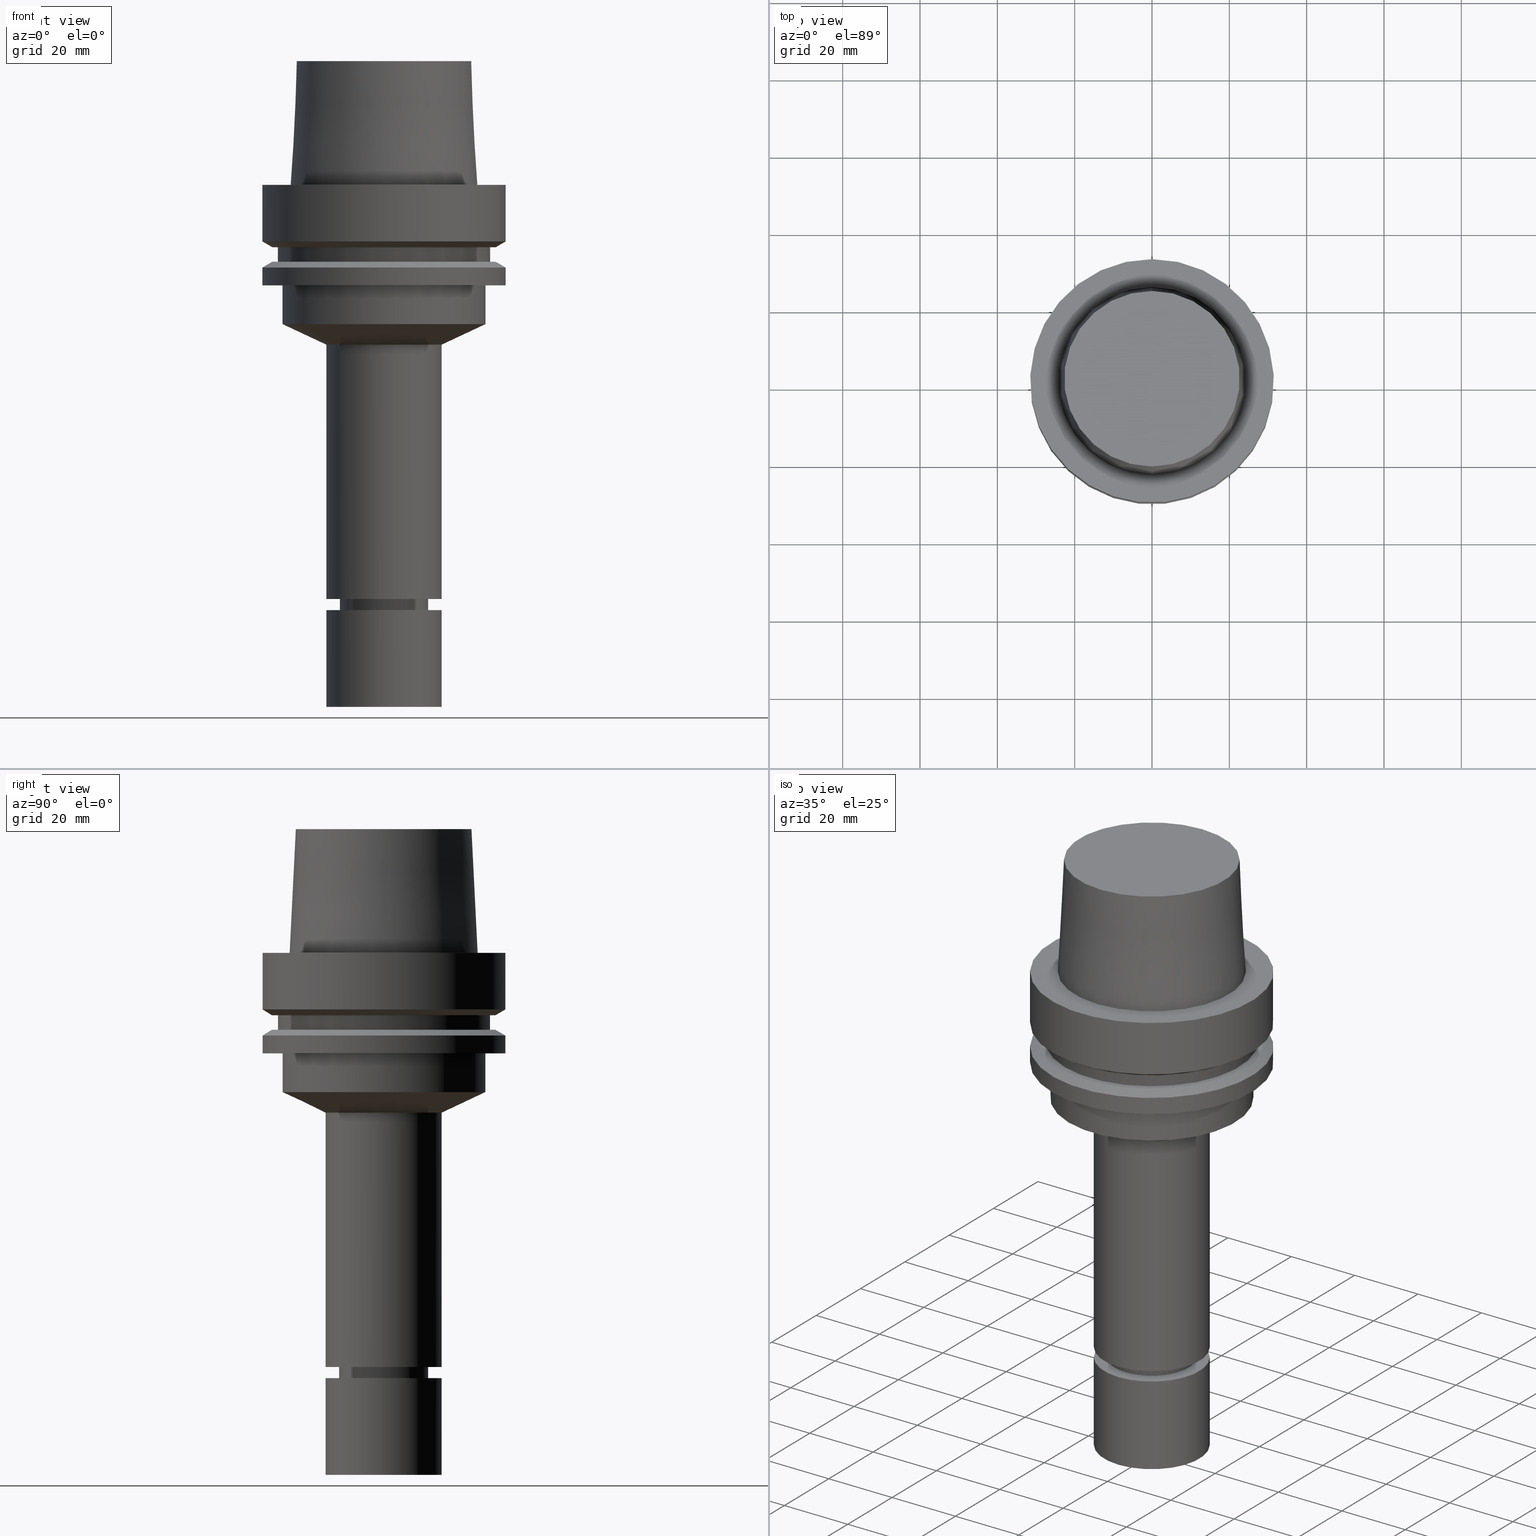
[diagram: canonical four-view strip — front | top / right | iso, engineering-drawing reading convention]
A machine part, canonical four-view strip (front | top / right | iso — engineering-drawing reading convention). The complete STEP part file that produces these views, byte-faithful:
ISO-10303-21;
HEADER;
FILE_DESCRIPTION((''),'1');
FILE_NAME('V:/90_\X2\53D65F9730C730FC30BF\X0\/00_\X2\6DE18DEF30C730FC30BF\X0\/ALL/HSK-BKUS\X2\52A05DE556F3\X0\_201801/HSK-A63-MEGAER/HSK-A63-MEGAER16-135NL.stp','2018-02-01T02:26:08',(''),(''),'Spatial Interop R21 SP3','Kubotek KeyCreator 2011 V10.0.2 (22737)',' ');
FILE_SCHEMA(('automotive_design'));
ENDSEC;
DATA;
#1=MECHANICAL_DESIGN_GEOMETRIC_PRESENTATION_REPRESENTATION(' ',(#14,#15,#16,#17,#18,#19,#20,#21,#22,#23,#24,#25,#26,#27,#28,#29,#30,#31,#32,#33,#34,#35,#36,#37,#38,#39,#40,#41,#42,#43,#44,#45,#46,#47,#48,#49,#50,#51,#52,#53,#54,#55,#56,#57,#58,#59),#10);
#2=PRODUCT_DEFINITION_CONTEXT('',#60,'design');
#3=APPLICATION_PROTOCOL_DEFINITION('INTERNATIONAL STANDARD','automotive_design',1994,#60);
#4=PRODUCT_CATEGORY_RELATIONSHIP('NONE','NONE',#61,#62);
#5=SHAPE_DEFINITION_REPRESENTATION(#63,#64);
#6=PRODUCT_DEFINITION_CONTEXT('',#65,'design');
#7=APPLICATION_PROTOCOL_DEFINITION('INTERNATIONAL STANDARD','automotive_design',1994,#65);
#8=PRODUCT_CATEGORY_RELATIONSHIP('NONE','NONE',#66,#67);
#9=SHAPE_DEFINITION_REPRESENTATION(#68,#69);
#10= (GEOMETRIC_REPRESENTATION_CONTEXT(3)GLOBAL_UNCERTAINTY_ASSIGNED_CONTEXT((#72))GLOBAL_UNIT_ASSIGNED_CONTEXT((#74,#75,#76))REPRESENTATION_CONTEXT('NONE','WORKSPACE'));
#14=STYLED_ITEM('',(#78,#79),#80);
#15=STYLED_ITEM('',(#81),#82);
#16=STYLED_ITEM('',(#83),#84);
#17=STYLED_ITEM('',(#85),#86);
#18=STYLED_ITEM('',(#87,#88),#89);
#19=STYLED_ITEM('',(#90,#91),#92);
#20=STYLED_ITEM('',(#93),#94);
#21=STYLED_ITEM('',(#95,#96),#97);
#22=STYLED_ITEM('',(#98),#99);
#23=STYLED_ITEM('',(#100),#101);
#24=STYLED_ITEM('',(#102),#103);
#25=STYLED_ITEM('',(#104,#105),#106);
#26=STYLED_ITEM('',(#107),#108);
#27=STYLED_ITEM('',(#109),#110);
#28=STYLED_ITEM('',(#111,#112),#113);
#29=STYLED_ITEM('',(#114,#115),#116);
#30=STYLED_ITEM('',(#117,#118),#119);
#31=STYLED_ITEM('',(#120),#121);
#32=STYLED_ITEM('',(#122),#123);
#33=STYLED_ITEM('',(#124),#125);
#34=STYLED_ITEM('',(#126),#127);
#35=STYLED_ITEM('',(#128),#129);
#36=STYLED_ITEM('',(#130,#131),#132);
#37=STYLED_ITEM('',(#133),#134);
#38=STYLED_ITEM('',(#135,#136),#137);
#39=STYLED_ITEM('',(#138,#139),#140);
#40=STYLED_ITEM('',(#141,#142),#143);
#41=STYLED_ITEM('',(#144,#145),#146);
#42=STYLED_ITEM('',(#147,#148),#149);
#43=STYLED_ITEM('',(#150,#151),#152);
#44=STYLED_ITEM('',(#153),#154);
#45=STYLED_ITEM('',(#155,#156),#157);
#46=STYLED_ITEM('',(#158,#159),#160);
#47=STYLED_ITEM('',(#161,#162),#163);
#48=STYLED_ITEM('',(#164),#165);
#49=STYLED_ITEM('',(#166),#167);
#50=STYLED_ITEM('',(#168),#169);
#51=STYLED_ITEM('',(#170,#171),#172);
#52=STYLED_ITEM('',(#173,#174),#175);
#53=STYLED_ITEM('',(#176,#177),#178);
#54=STYLED_ITEM('',(#179,#180),#181);
#55=STYLED_ITEM('',(#182,#183),#184);
#56=STYLED_ITEM('',(#185),#186);
#57=STYLED_ITEM('',(#187),#188);
#58=STYLED_ITEM('',(#189,#190),#191);
#59=STYLED_ITEM('',(#192,#193),#194);
#60=APPLICATION_CONTEXT(' ');
#61=PRODUCT_CATEGORY('part','NONE');
#62=PRODUCT_RELATED_PRODUCT_CATEGORY('detail',' ',(#195));
#63=PRODUCT_DEFINITION_SHAPE('NONE','NONE',#196);
#64=ADVANCED_BREP_SHAPE_REPRESENTATION('Unnamed[1]',(#143,#197),#10);
#65=APPLICATION_CONTEXT(' ');
#66=PRODUCT_CATEGORY('part','NONE');
#67=PRODUCT_RELATED_PRODUCT_CATEGORY('detail',' ',(#198));
#68=PRODUCT_DEFINITION_SHAPE('NONE','NONE',#199);
#69=ADVANCED_BREP_SHAPE_REPRESENTATION('Unnamed[1]',(#140,#200),#10);
#72=UNCERTAINTY_MEASURE_WITH_UNIT(LENGTH_MEASURE(1.0E-006),#74,'','');
#74= (CONVERSION_BASED_UNIT('MILLIMETRE',#203)LENGTH_UNIT()NAMED_UNIT(#206));
#75= (NAMED_UNIT(#208)PLANE_ANGLE_UNIT()SI_UNIT($,.RADIAN.));
#76= (NAMED_UNIT(#208)SOLID_ANGLE_UNIT()SI_UNIT($,.STERADIAN.));
#78=PRESENTATION_STYLE_ASSIGNMENT((#214));
#79=PRESENTATION_STYLE_ASSIGNMENT((#215));
#80=ADVANCED_FACE('Unnamed[1]',(#216,#217),#218,.T.);
#81=PRESENTATION_STYLE_ASSIGNMENT((#219));
#82=EDGE_CURVE('Unnamed[1]',#220,#220,#221,.T.);
#83=PRESENTATION_STYLE_ASSIGNMENT((#222));
#84=EDGE_CURVE('Unnamed[1]',#223,#223,#224,.T.);
#85=PRESENTATION_STYLE_ASSIGNMENT((#225));
#86=EDGE_CURVE('Unnamed[1]',#226,#226,#227,.T.);
#87=PRESENTATION_STYLE_ASSIGNMENT((#228));
#88=PRESENTATION_STYLE_ASSIGNMENT((#229));
#89=ADVANCED_FACE('Unnamed[1]',(#230,#231),#232,.T.);
#90=PRESENTATION_STYLE_ASSIGNMENT((#233));
#91=PRESENTATION_STYLE_ASSIGNMENT((#234));
#92=ADVANCED_FACE('Unnamed[1]',(#235,#236),#237,.T.);
#93=PRESENTATION_STYLE_ASSIGNMENT((#238));
#94=EDGE_CURVE('Unnamed[1]',#239,#239,#240,.T.);
#95=PRESENTATION_STYLE_ASSIGNMENT((#241));
#96=PRESENTATION_STYLE_ASSIGNMENT((#242));
#97=ADVANCED_FACE('Unnamed[1]',(#243),#244,.T.);
#98=PRESENTATION_STYLE_ASSIGNMENT((#245));
#99=EDGE_CURVE('Unnamed[1]',#246,#246,#247,.T.);
#100=PRESENTATION_STYLE_ASSIGNMENT((#248));
#101=EDGE_CURVE('Unnamed[1]',#249,#249,#250,.T.);
#102=PRESENTATION_STYLE_ASSIGNMENT((#251));
#103=EDGE_CURVE('Unnamed[1]',#252,#252,#253,.T.);
#104=PRESENTATION_STYLE_ASSIGNMENT((#254));
#105=PRESENTATION_STYLE_ASSIGNMENT((#255));
#106=ADVANCED_FACE('Unnamed[1]',(#256,#257),#258,.T.);
#107=PRESENTATION_STYLE_ASSIGNMENT((#259));
#108=EDGE_CURVE('Unnamed[1]',#260,#260,#261,.T.);
#109=PRESENTATION_STYLE_ASSIGNMENT((#262));
#110=EDGE_CURVE('Unnamed[1]',#263,#263,#264,.T.);
#111=PRESENTATION_STYLE_ASSIGNMENT((#265));
#112=PRESENTATION_STYLE_ASSIGNMENT((#266));
#113=ADVANCED_FACE('Unnamed[1]',(#267),#268,.T.);
#114=PRESENTATION_STYLE_ASSIGNMENT((#269));
#115=PRESENTATION_STYLE_ASSIGNMENT((#270));
#116=ADVANCED_FACE('Unnamed[1]',(#271,#272),#273,.T.);
#117=PRESENTATION_STYLE_ASSIGNMENT((#274));
#118=PRESENTATION_STYLE_ASSIGNMENT((#275));
#119=ADVANCED_FACE('Unnamed[1]',(#276,#277),#278,.T.);
#120=PRESENTATION_STYLE_ASSIGNMENT((#279));
#121=EDGE_CURVE('Unnamed[1]',#280,#280,#281,.T.);
#122=PRESENTATION_STYLE_ASSIGNMENT((#282));
#123=EDGE_CURVE('Unnamed[1]',#283,#283,#284,.T.);
#124=PRESENTATION_STYLE_ASSIGNMENT((#285));
#125=EDGE_CURVE('Unnamed[1]',#286,#286,#287,.T.);
#126=PRESENTATION_STYLE_ASSIGNMENT((#288));
#127=EDGE_CURVE('Unnamed[1]',#289,#289,#290,.T.);
#128=PRESENTATION_STYLE_ASSIGNMENT((#291));
#129=EDGE_CURVE('Unnamed[1]',#292,#292,#293,.T.);
#130=PRESENTATION_STYLE_ASSIGNMENT((#294));
#131=PRESENTATION_STYLE_ASSIGNMENT((#295));
#132=ADVANCED_FACE('Unnamed[1]',(#296),#297,.T.);
#133=PRESENTATION_STYLE_ASSIGNMENT((#298));
#134=EDGE_CURVE('Unnamed[1]',#299,#299,#300,.T.);
#135=PRESENTATION_STYLE_ASSIGNMENT((#301));
#136=PRESENTATION_STYLE_ASSIGNMENT((#302));
#137=ADVANCED_FACE('Unnamed[1]',(#303,#304),#305,.T.);
#138=PRESENTATION_STYLE_ASSIGNMENT((#306));
#139=PRESENTATION_STYLE_ASSIGNMENT((#307));
#140=MANIFOLD_SOLID_BREP('Unnamed[1]',#308);
#141=PRESENTATION_STYLE_ASSIGNMENT((#309));
#142=PRESENTATION_STYLE_ASSIGNMENT((#310));
#143=MANIFOLD_SOLID_BREP('Unnamed[1]',#311);
#144=PRESENTATION_STYLE_ASSIGNMENT((#312));
#145=PRESENTATION_STYLE_ASSIGNMENT((#313));
#146=ADVANCED_FACE('Unnamed[1]',(#314,#315),#316,.T.);
#147=PRESENTATION_STYLE_ASSIGNMENT((#317));
#148=PRESENTATION_STYLE_ASSIGNMENT((#318));
#149=ADVANCED_FACE('Unnamed[1]',(#319,#320),#321,.T.);
#150=PRESENTATION_STYLE_ASSIGNMENT((#322));
#151=PRESENTATION_STYLE_ASSIGNMENT((#323));
#152=ADVANCED_FACE('Unnamed[1]',(#324),#325,.T.);
#153=PRESENTATION_STYLE_ASSIGNMENT((#326));
#154=EDGE_CURVE('Unnamed[1]',#327,#327,#328,.T.);
#155=PRESENTATION_STYLE_ASSIGNMENT((#329));
#156=PRESENTATION_STYLE_ASSIGNMENT((#330));
#157=ADVANCED_FACE('Unnamed[1]',(#331,#332),#333,.T.);
#158=PRESENTATION_STYLE_ASSIGNMENT((#334));
#159=PRESENTATION_STYLE_ASSIGNMENT((#335));
#160=ADVANCED_FACE('Unnamed[1]',(#336,#337),#338,.T.);
#161=PRESENTATION_STYLE_ASSIGNMENT((#339));
#162=PRESENTATION_STYLE_ASSIGNMENT((#340));
#163=ADVANCED_FACE('Unnamed[1]',(#341,#342),#343,.T.);
#164=PRESENTATION_STYLE_ASSIGNMENT((#344));
#165=EDGE_CURVE('Unnamed[1]',#345,#345,#346,.T.);
#166=PRESENTATION_STYLE_ASSIGNMENT((#347));
#167=EDGE_CURVE('Unnamed[1]',#348,#348,#349,.T.);
#168=PRESENTATION_STYLE_ASSIGNMENT((#350));
#169=EDGE_CURVE('Unnamed[1]',#351,#351,#352,.T.);
#170=PRESENTATION_STYLE_ASSIGNMENT((#353));
#171=PRESENTATION_STYLE_ASSIGNMENT((#354));
#172=ADVANCED_FACE('Unnamed[1]',(#355,#356),#357,.T.);
#173=PRESENTATION_STYLE_ASSIGNMENT((#358));
#174=PRESENTATION_STYLE_ASSIGNMENT((#359));
#175=ADVANCED_FACE('Unnamed[1]',(#360,#361),#362,.T.);
#176=PRESENTATION_STYLE_ASSIGNMENT((#363));
#177=PRESENTATION_STYLE_ASSIGNMENT((#364));
#178=ADVANCED_FACE('Unnamed[1]',(#365,#366),#367,.T.);
#179=PRESENTATION_STYLE_ASSIGNMENT((#368));
#180=PRESENTATION_STYLE_ASSIGNMENT((#369));
#181=ADVANCED_FACE('Unnamed[1]',(#370,#371),#372,.T.);
#182=PRESENTATION_STYLE_ASSIGNMENT((#373));
#183=PRESENTATION_STYLE_ASSIGNMENT((#374));
#184=ADVANCED_FACE('Unnamed[1]',(#375,#376),#377,.T.);
#185=PRESENTATION_STYLE_ASSIGNMENT((#378));
#186=EDGE_CURVE('Unnamed[1]',#379,#379,#380,.T.);
#187=PRESENTATION_STYLE_ASSIGNMENT((#381));
#188=EDGE_CURVE('Unnamed[1]',#382,#382,#383,.T.);
#189=PRESENTATION_STYLE_ASSIGNMENT((#384));
#190=PRESENTATION_STYLE_ASSIGNMENT((#385));
#191=ADVANCED_FACE('Unnamed[1]',(#386,#387),#388,.T.);
#192=PRESENTATION_STYLE_ASSIGNMENT((#389));
#193=PRESENTATION_STYLE_ASSIGNMENT((#390));
#194=ADVANCED_FACE('Unnamed[1]',(#391,#392),#393,.T.);
#195=PRODUCT('Unnamed[1]','Unnamed[1]','PART-Unnamed[1]-DESC',(#394));
#196=PRODUCT_DEFINITION('NONE','NONE',#395,#2);
#197=AXIS2_PLACEMENT_3D('',#396,#397,#398);
#198=PRODUCT('Unnamed[1]','Unnamed[1]','PART-Unnamed[1]-DESC',(#399));
#199=PRODUCT_DEFINITION('NONE','NONE',#400,#6);
#200=AXIS2_PLACEMENT_3D('',#401,#402,#403);
#203=LENGTH_MEASURE_WITH_UNIT(LENGTH_MEASURE(1.0),#404);
#206=DIMENSIONAL_EXPONENTS(1.0,0.0,0.0,0.0,0.0,0.0,0.0);
#208=DIMENSIONAL_EXPONENTS(0.0,0.0,0.0,0.0,0.0,0.0,0.0);
#214=SURFACE_STYLE_USAGE(.BOTH.,#405);
#215=CURVE_STYLE('',#406,POSITIVE_LENGTH_MEASURE(1000.0),#407);
#216=FACE_BOUND('',#408,.T.);
#217=FACE_BOUND('',#409,.T.);
#218=CONICAL_SURFACE('',#410,10.4499999999999,0.523598775598224);
#219=CURVE_STYLE('',#411,POSITIVE_LENGTH_MEASURE(1000.0),#412);
#220=VERTEX_POINT('',#413);
#221=CIRCLE('',#414,26.3);
#222=CURVE_STYLE('',#415,POSITIVE_LENGTH_MEASURE(1000.0),#416);
#223=VERTEX_POINT('',#417);
#224=CIRCLE('',#418,28.8975952641919);
#225=CURVE_STYLE('',#419,POSITIVE_LENGTH_MEASURE(1000.0),#420);
#226=VERTEX_POINT('',#421);
#227=CIRCLE('',#422,31.5);
#228=SURFACE_STYLE_USAGE(.BOTH.,#423);
#229=CURVE_STYLE('',#424,POSITIVE_LENGTH_MEASURE(1000.0),#425);
#230=FACE_BOUND('',#426,.T.);
#231=FACE_BOUND('',#427,.T.);
#232=CONICAL_SURFACE('',#428,11.250000000001,1.04719755118896);
#233=SURFACE_STYLE_USAGE(.BOTH.,#429);
#234=CURVE_STYLE('',#430,POSITIVE_LENGTH_MEASURE(1000.0),#431);
#235=FACE_BOUND('',#432,.T.);
#236=FACE_BOUND('',#433,.T.);
#237=CYLINDRICAL_SURFACE('',#434,31.5);
#238=CURVE_STYLE('',#435,POSITIVE_LENGTH_MEASURE(1000.0),#436);
#239=VERTEX_POINT('',#437);
#240=CIRCLE('',#438,27.4999999999989);
#241=SURFACE_STYLE_USAGE(.BOTH.,#439);
#242=CURVE_STYLE('',#440,POSITIVE_LENGTH_MEASURE(1000.0),#441);
#243=FACE_OUTER_BOUND('',#442,.T.);
#244=PLANE('',#443);
#245=CURVE_STYLE('',#444,POSITIVE_LENGTH_MEASURE(1000.0),#445);
#246=VERTEX_POINT('',#446);
#247=CIRCLE('',#447,15.0);
#248=CURVE_STYLE('',#448,POSITIVE_LENGTH_MEASURE(1000.0),#449);
#249=VERTEX_POINT('',#450);
#250=CIRCLE('',#451,31.5);
#251=CURVE_STYLE('',#452,POSITIVE_LENGTH_MEASURE(1000.0),#453);
#252=VERTEX_POINT('',#454);
#253=CIRCLE('',#455,28.8975952641919);
#254=SURFACE_STYLE_USAGE(.BOTH.,#456);
#255=CURVE_STYLE('',#457,POSITIVE_LENGTH_MEASURE(1000.0),#458);
#256=FACE_OUTER_BOUND('',#459,.T.);
#257=FACE_BOUND('',#460,.T.);
#258=PLANE('',#461);
#259=CURVE_STYLE('',#462,POSITIVE_LENGTH_MEASURE(1000.0),#463);
#260=VERTEX_POINT('',#464);
#261=CIRCLE('',#465,11.5000000000021);
#262=CURVE_STYLE('',#466,POSITIVE_LENGTH_MEASURE(1000.0),#467);
#263=VERTEX_POINT('',#468);
#264=CIRCLE('',#469,15.0000000000001);
#265=SURFACE_STYLE_USAGE(.BOTH.,#470);
#266=CURVE_STYLE('',#471,POSITIVE_LENGTH_MEASURE(1000.0),#472);
#267=FACE_OUTER_BOUND('',#473,.T.);
#268=PLANE('',#474);
#269=SURFACE_STYLE_USAGE(.BOTH.,#475);
#270=CURVE_STYLE('',#476,POSITIVE_LENGTH_MEASURE(1000.0),#477);
#271=FACE_BOUND('',#478,.T.);
#272=FACE_BOUND('',#479,.T.);
#273=CYLINDRICAL_SURFACE('',#480,11.0000000000001);
#274=SURFACE_STYLE_USAGE(.BOTH.,#481);
#275=CURVE_STYLE('',#482,POSITIVE_LENGTH_MEASURE(1000.0),#483);
#276=FACE_BOUND('',#484,.T.);
#277=FACE_BOUND('',#485,.T.);
#278=CYLINDRICAL_SURFACE('',#486,31.4999999999999);
#279=CURVE_STYLE('',#487,POSITIVE_LENGTH_MEASURE(1000.0),#488);
#280=VERTEX_POINT('',#489);
#281=CIRCLE('',#490,10.9999999999999);
#282=CURVE_STYLE('',#491,POSITIVE_LENGTH_MEASURE(1000.0),#492);
#283=VERTEX_POINT('',#493);
#284=CIRCLE('',#494,31.5000000000001);
#285=CURVE_STYLE('',#495,POSITIVE_LENGTH_MEASURE(1000.0),#496);
#286=VERTEX_POINT('',#497);
#287=CIRCLE('',#498,24.315);
#288=CURVE_STYLE('',#499,POSITIVE_LENGTH_MEASURE(1000.0),#500);
#289=VERTEX_POINT('',#501);
#290=CIRCLE('',#502,22.715);
#291=CURVE_STYLE('',#503,POSITIVE_LENGTH_MEASURE(1000.0),#504);
#292=VERTEX_POINT('',#505);
#293=CIRCLE('',#506,11.4999999999907);
#294=SURFACE_STYLE_USAGE(.BOTH.,#507);
#295=CURVE_STYLE('',#508,POSITIVE_LENGTH_MEASURE(1000.0),#509);
#296=FACE_OUTER_BOUND('',#510,.T.);
#297=PLANE('',#511);
#298=CURVE_STYLE('',#512,POSITIVE_LENGTH_MEASURE(1000.0),#513);
#299=VERTEX_POINT('',#514);
#300=CIRCLE('',#515,9.89999999999962);
#301=SURFACE_STYLE_USAGE(.BOTH.,#516);
#302=CURVE_STYLE('',#517,POSITIVE_LENGTH_MEASURE(1000.0),#518);
#303=FACE_BOUND('',#519,.T.);
#304=FACE_BOUND('',#520,.T.);
#305=CYLINDRICAL_SURFACE('',#521,11.4999999999964);
#306=SURFACE_STYLE_USAGE(.BOTH.,#522);
#307=CURVE_STYLE('',#523,POSITIVE_LENGTH_MEASURE(1000.0),#524);
#308=CLOSED_SHELL('',(#132,#113,#178));
#309=SURFACE_STYLE_USAGE(.BOTH.,#525);
#310=CURVE_STYLE('',#526,POSITIVE_LENGTH_MEASURE(1000.0),#527);
#311=CLOSED_SHELL('',(#152,#80,#116,#89,#137,#194,#175,#146,#149,#163,#119,#181,#191,#172,#106,#160,#92,#157,#184,#97));
#312=SURFACE_STYLE_USAGE(.BOTH.,#528);
#313=CURVE_STYLE('',#529,POSITIVE_LENGTH_MEASURE(1000.0),#530);
#314=FACE_BOUND('',#531,.T.);
#315=FACE_BOUND('',#532,.T.);
#316=CONICAL_SURFACE('',#533,20.65,1.13007312047941);
#317=SURFACE_STYLE_USAGE(.BOTH.,#534);
#318=CURVE_STYLE('',#535,POSITIVE_LENGTH_MEASURE(1000.0),#536);
#319=FACE_BOUND('',#537,.T.);
#320=FACE_BOUND('',#538,.T.);
#321=CYLINDRICAL_SURFACE('',#539,26.3);
#322=SURFACE_STYLE_USAGE(.BOTH.,#540);
#323=CURVE_STYLE('',#541,POSITIVE_LENGTH_MEASURE(1000.0),#542);
#324=FACE_OUTER_BOUND('',#543,.T.);
#325=PLANE('',#544);
#326=CURVE_STYLE('',#545,POSITIVE_LENGTH_MEASURE(1000.0),#546);
#327=VERTEX_POINT('',#547);
#328=CIRCLE('',#548,27.5);
#329=SURFACE_STYLE_USAGE(.BOTH.,#549);
#330=CURVE_STYLE('',#550,POSITIVE_LENGTH_MEASURE(1000.0),#551);
#331=FACE_BOUND('',#552,.T.);
#332=FACE_OUTER_BOUND('',#553,.T.);
#333=PLANE('',#554);
#334=SURFACE_STYLE_USAGE(.BOTH.,#555);
#335=CURVE_STYLE('',#556,POSITIVE_LENGTH_MEASURE(1000.0),#557);
#336=FACE_BOUND('',#558,.T.);
#337=FACE_BOUND('',#559,.T.);
#338=CONICAL_SURFACE('',#560,30.1987976320959,1.04719755119657);
#339=SURFACE_STYLE_USAGE(.BOTH.,#561);
#340=CURVE_STYLE('',#562,POSITIVE_LENGTH_MEASURE(1000.0),#563);
#341=FACE_OUTER_BOUND('',#564,.T.);
#342=FACE_BOUND('',#565,.T.);
#343=PLANE('',#566);
#344=CURVE_STYLE('',#567,POSITIVE_LENGTH_MEASURE(1000.0),#568);
#345=VERTEX_POINT('',#569);
#346=CIRCLE('',#570,15.0);
#347=CURVE_STYLE('',#571,POSITIVE_LENGTH_MEASURE(1000.0),#572);
#348=VERTEX_POINT('',#573);
#349=CIRCLE('',#574,31.4999999999998);
#350=CURVE_STYLE('',#575,POSITIVE_LENGTH_MEASURE(1000.0),#576);
#351=VERTEX_POINT('',#577);
#352=CIRCLE('',#578,26.3);
#353=SURFACE_STYLE_USAGE(.BOTH.,#579);
#354=CURVE_STYLE('',#580,POSITIVE_LENGTH_MEASURE(1000.0),#581);
#355=FACE_BOUND('',#582,.T.);
#356=FACE_BOUND('',#583,.T.);
#357=CYLINDRICAL_SURFACE('',#584,27.4999999999994);
#358=SURFACE_STYLE_USAGE(.BOTH.,#585);
#359=CURVE_STYLE('',#586,POSITIVE_LENGTH_MEASURE(1000.0),#587);
#360=FACE_BOUND('',#588,.T.);
#361=FACE_BOUND('',#589,.T.);
#362=CYLINDRICAL_SURFACE('',#590,15.0000000000001);
#363=SURFACE_STYLE_USAGE(.BOTH.,#591);
#364=CURVE_STYLE('',#592,POSITIVE_LENGTH_MEASURE(1000.0),#593);
#365=FACE_BOUND('',#594,.T.);
#366=FACE_BOUND('',#595,.T.);
#367=CYLINDRICAL_SURFACE('',#596,15.0);
#368=SURFACE_STYLE_USAGE(.BOTH.,#597);
#369=CURVE_STYLE('',#598,POSITIVE_LENGTH_MEASURE(1000.0),#599);
#370=FACE_BOUND('',#600,.T.);
#371=FACE_BOUND('',#601,.T.);
#372=CONICAL_SURFACE('',#602,30.1987976320959,1.04719755119657);
#373=SURFACE_STYLE_USAGE(.BOTH.,#603);
#374=CURVE_STYLE('',#604,POSITIVE_LENGTH_MEASURE(1000.0),#605);
#375=FACE_BOUND('',#606,.T.);
#376=FACE_BOUND('',#607,.T.);
#377=CONICAL_SURFACE('',#608,23.515,0.0499583957219433);
#378=CURVE_STYLE('',#609,POSITIVE_LENGTH_MEASURE(1000.0),#610);
#379=VERTEX_POINT('',#611);
#380=CIRCLE('',#612,11.0000000000003);
#381=CURVE_STYLE('',#613,POSITIVE_LENGTH_MEASURE(1000.0),#614);
#382=VERTEX_POINT('',#615);
#383=CIRCLE('',#616,15.0000000000002);
#384=SURFACE_STYLE_USAGE(.BOTH.,#617);
#385=CURVE_STYLE('',#618,POSITIVE_LENGTH_MEASURE(1000.0),#619);
#386=FACE_BOUND('',#620,.T.);
#387=FACE_OUTER_BOUND('',#621,.T.);
#388=PLANE('',#622);
#389=SURFACE_STYLE_USAGE(.BOTH.,#623);
#390=CURVE_STYLE('',#624,POSITIVE_LENGTH_MEASURE(1000.0),#625);
#391=FACE_OUTER_BOUND('',#626,.T.);
#392=FACE_BOUND('',#627,.T.);
#393=PLANE('',#628);
#394=PRODUCT_CONTEXT('',#60,'mechanical');
#395=PRODUCT_DEFINITION_FORMATION_WITH_SPECIFIED_SOURCE(' ','NONE',#195,.NOT_KNOWN.);
#396=CARTESIAN_POINT('',(0.0,0.0,0.0));
#397=DIRECTION('',(0.0,0.0,1.0));
#398=DIRECTION('',(1.0,0.0,0.0));
#399=PRODUCT_CONTEXT('',#65,'mechanical');
#400=PRODUCT_DEFINITION_FORMATION_WITH_SPECIFIED_SOURCE(' ','NONE',#198,.NOT_KNOWN.);
#401=CARTESIAN_POINT('',(0.0,0.0,0.0));
#402=DIRECTION('',(0.0,0.0,1.0));
#403=DIRECTION('',(1.0,0.0,0.0));
#404= (NAMED_UNIT(#206)LENGTH_UNIT()SI_UNIT(.MILLI.,.METRE.));
#405=SURFACE_SIDE_STYLE('',(#630));
#406=DRAUGHTING_PRE_DEFINED_CURVE_FONT('continuous');
#407=COLOUR_RGB('',0.0,1.0,0.0);
#408=EDGE_LOOP('',(#631));
#409=EDGE_LOOP('',(#632));
#410=AXIS2_PLACEMENT_3D('',#633,#634,#635);
#411=DRAUGHTING_PRE_DEFINED_CURVE_FONT('continuous');
#412=COLOUR_RGB('',0.0,1.0,0.0);
#413=CARTESIAN_POINT('',(1.59204083889154E-015,26.3,-25.9999999999997));
#414=AXIS2_PLACEMENT_3D('',#636,#637,#638);
#415=DRAUGHTING_PRE_DEFINED_CURVE_FONT('continuous');
#416=COLOUR_RGB('',0.0,1.0,0.0);
#417=CARTESIAN_POINT('',(9.87371481812551E-016,28.8975952641919,-16.125));
#418=AXIS2_PLACEMENT_3D('',#639,#640,#641);
#419=DRAUGHTING_PRE_DEFINED_CURVE_FONT('continuous');
#420=COLOUR_RGB('',0.0,1.0,0.0);
#421=CARTESIAN_POINT('',(8.95369947681261E-016,31.5,-14.6225009252407));
#422=AXIS2_PLACEMENT_3D('',#642,#643,#644);
#423=SURFACE_SIDE_STYLE('',(#645));
#424=DRAUGHTING_PRE_DEFINED_CURVE_FONT('continuous');
#425=COLOUR_RGB('',0.0,1.0,0.0);
#426=EDGE_LOOP('',(#646));
#427=EDGE_LOOP('',(#647));
#428=AXIS2_PLACEMENT_3D('',#648,#649,#650);
#429=SURFACE_SIDE_STYLE('',(#651));
#430=DRAUGHTING_PRE_DEFINED_CURVE_FONT('continuous');
#431=COLOUR_RGB('',0.0,1.0,0.0);
#432=EDGE_LOOP('',(#652));
#433=EDGE_LOOP('',(#653));
#434=AXIS2_PLACEMENT_3D('',#654,#655,#656);
#435=DRAUGHTING_PRE_DEFINED_CURVE_FONT('continuous');
#436=COLOUR_RGB('',0.0,1.0,0.0);
#437=CARTESIAN_POINT('',(1.21699275665276E-015,27.4999999999989,-19.8750000000013));
#438=AXIS2_PLACEMENT_3D('',#657,#658,#659);
#439=SURFACE_SIDE_STYLE('',(#660));
#440=DRAUGHTING_PRE_DEFINED_CURVE_FONT('continuous');
#441=COLOUR_RGB('',0.0,1.0,0.0);
#442=EDGE_LOOP('',(#661));
#443=AXIS2_PLACEMENT_3D('',#662,#663,#664);
#444=DRAUGHTING_PRE_DEFINED_CURVE_FONT('continuous');
#445=COLOUR_RGB('',0.0,1.0,0.0);
#446=CARTESIAN_POINT('',(2.5307207827018E-015,15.0,-41.329806838409));
#447=AXIS2_PLACEMENT_3D('',#665,#666,#667);
#448=DRAUGHTING_PRE_DEFINED_CURVE_FONT('continuous');
#449=COLOUR_RGB('',0.0,1.0,0.0);
#450=CARTESIAN_POINT('',(1.30899429078397E-015,31.5,-21.3774990747592));
#451=AXIS2_PLACEMENT_3D('',#668,#669,#670);
#452=DRAUGHTING_PRE_DEFINED_CURVE_FONT('continuous');
#453=COLOUR_RGB('',0.0,1.0,0.0);
#454=CARTESIAN_POINT('',(1.21699275665268E-015,28.8975952641919,-19.875));
#455=AXIS2_PLACEMENT_3D('',#671,#672,#673);
#456=SURFACE_SIDE_STYLE('',(#674));
#457=DRAUGHTING_PRE_DEFINED_CURVE_FONT('continuous');
#458=COLOUR_RGB('',0.0,1.0,0.0);
#459=EDGE_LOOP('',(#675));
#460=EDGE_LOOP('',(#676));
#461=AXIS2_PLACEMENT_3D('',#677,#678,#679);
#462=DRAUGHTING_PRE_DEFINED_CURVE_FONT('continuous');
#463=COLOUR_RGB('',0.0,1.0,0.0);
#464=CARTESIAN_POINT('',(6.91382462919479E-015,11.5000000000021,-112.911324865397));
#465=AXIS2_PLACEMENT_3D('',#680,#681,#682);
#466=DRAUGHTING_PRE_DEFINED_CURVE_FONT('continuous');
#467=COLOUR_RGB('',0.0,1.0,0.0);
#468=CARTESIAN_POINT('',(6.73555739531044E-015,15.0000000000001,-110.0));
#469=AXIS2_PLACEMENT_3D('',#683,#684,#685);
#470=SURFACE_SIDE_STYLE('',(#686));
#471=DRAUGHTING_PRE_DEFINED_CURVE_FONT('continuous');
#472=COLOUR_RGB('',0.0,1.0,0.0);
#473=EDGE_LOOP('',(#687));
#474=AXIS2_PLACEMENT_3D('',#688,#689,#690);
#475=SURFACE_SIDE_STYLE('',(#691));
#476=DRAUGHTING_PRE_DEFINED_CURVE_FONT('continuous');
#477=COLOUR_RGB('',0.0,1.0,0.0);
#478=EDGE_LOOP('',(#692));
#479=EDGE_LOOP('',(#693));
#480=AXIS2_PLACEMENT_3D('',#694,#695,#696);
#481=SURFACE_SIDE_STYLE('',(#697));
#482=DRAUGHTING_PRE_DEFINED_CURVE_FONT('continuous');
#483=COLOUR_RGB('',0.0,1.0,0.0);
#484=EDGE_LOOP('',(#698));
#485=EDGE_LOOP('',(#699));
#486=AXIS2_PLACEMENT_3D('',#700,#701,#702);
#487=DRAUGHTING_PRE_DEFINED_CURVE_FONT('continuous');
#488=COLOUR_RGB('',0.0,1.0,0.0);
#489=CARTESIAN_POINT('',(6.93150088317393E-015,10.9999999999999,-113.199999999998));
#490=AXIS2_PLACEMENT_3D('',#703,#704,#705);
#491=DRAUGHTING_PRE_DEFINED_CURVE_FONT('continuous');
#492=COLOUR_RGB('',0.0,1.0,0.0);
#493=CARTESIAN_POINT('',(-3.88267476788467E-031,31.5000000000001,3.85763741731417E-015));
#494=AXIS2_PLACEMENT_3D('',#706,#707,#708);
#495=DRAUGHTING_PRE_DEFINED_CURVE_FONT('continuous');
#496=COLOUR_RGB('',0.0,1.0,0.0);
#497=CARTESIAN_POINT('',(-2.99705514225764E-031,24.315,2.97772869212679E-015));
#498=AXIS2_PLACEMENT_3D('',#709,#710,#711);
#499=DRAUGHTING_PRE_DEFINED_CURVE_FONT('continuous');
#500=COLOUR_RGB('',0.0,1.0,0.0);
#501=CARTESIAN_POINT('',(-1.95943487863576E-015,22.715,32.0));
#502=AXIS2_PLACEMENT_3D('',#712,#713,#714);
#503=DRAUGHTING_PRE_DEFINED_CURVE_FONT('continuous');
#504=COLOUR_RGB('',0.0,1.0,0.0);
#505=CARTESIAN_POINT('',(6.55798361643999E-015,11.4999999999907,-107.100000114415));
#506=AXIS2_PLACEMENT_3D('',#715,#716,#717);
#507=SURFACE_SIDE_STYLE('',(#718));
#508=DRAUGHTING_PRE_DEFINED_CURVE_FONT('continuous');
#509=COLOUR_RGB('',0.0,1.0,0.0);
#510=EDGE_LOOP('',(#719));
#511=AXIS2_PLACEMENT_3D('',#720,#721,#722);
#512=DRAUGHTING_PRE_DEFINED_CURVE_FONT('continuous');
#513=COLOUR_RGB('',0.0,1.0,0.0);
#514=CARTESIAN_POINT('',(7.72752130261974E-015,9.89999999999963,-126.199999999999));
#515=AXIS2_PLACEMENT_3D('',#723,#724,#725);
#516=SURFACE_SIDE_STYLE('',(#726));
#517=DRAUGHTING_PRE_DEFINED_CURVE_FONT('continuous');
#518=COLOUR_RGB('',0.0,1.0,0.0);
#519=EDGE_LOOP('',(#727));
#520=EDGE_LOOP('',(#728));
#521=AXIS2_PLACEMENT_3D('',#729,#730,#731);
#522=SURFACE_SIDE_STYLE('',(#732));
#523=DRAUGHTING_PRE_DEFINED_CURVE_FONT('continuous');
#524=COLOUR_RGB('',0.0,1.0,0.0);
#525=SURFACE_SIDE_STYLE('',(#733));
#526=DRAUGHTING_PRE_DEFINED_CURVE_FONT('continuous');
#527=COLOUR_RGB('',0.0,1.0,0.0);
#528=SURFACE_SIDE_STYLE('',(#734));
#529=DRAUGHTING_PRE_DEFINED_CURVE_FONT('continuous');
#530=COLOUR_RGB('',0.0,1.0,0.0);
#531=EDGE_LOOP('',(#735));
#532=EDGE_LOOP('',(#736));
#533=AXIS2_PLACEMENT_3D('',#737,#738,#739);
#534=SURFACE_SIDE_STYLE('',(#740));
#535=DRAUGHTING_PRE_DEFINED_CURVE_FONT('continuous');
#536=COLOUR_RGB('',0.0,1.0,0.0);
#537=EDGE_LOOP('',(#741));
#538=EDGE_LOOP('',(#742));
#539=AXIS2_PLACEMENT_3D('',#743,#744,#745);
#540=SURFACE_SIDE_STYLE('',(#746));
#541=DRAUGHTING_PRE_DEFINED_CURVE_FONT('continuous');
#542=COLOUR_RGB('',0.0,1.0,0.0);
#543=EDGE_LOOP('',(#747));
#544=AXIS2_PLACEMENT_3D('',#748,#749,#750);
#545=DRAUGHTING_PRE_DEFINED_CURVE_FONT('continuous');
#546=COLOUR_RGB('',0.0,1.0,0.0);
#547=CARTESIAN_POINT('',(9.87371481812537E-016,27.5,-16.1249999999997));
#548=AXIS2_PLACEMENT_3D('',#751,#752,#753);
#549=SURFACE_SIDE_STYLE('',(#754));
#550=DRAUGHTING_PRE_DEFINED_CURVE_FONT('continuous');
#551=COLOUR_RGB('',0.0,1.0,0.0);
#552=EDGE_LOOP('',(#755));
#553=EDGE_LOOP('',(#756));
#554=AXIS2_PLACEMENT_3D('',#757,#758,#759);
#555=SURFACE_SIDE_STYLE('',(#760));
#556=DRAUGHTING_PRE_DEFINED_CURVE_FONT('continuous');
#557=COLOUR_RGB('',0.0,1.0,0.0);
#558=EDGE_LOOP('',(#761));
#559=EDGE_LOOP('',(#762));
#560=AXIS2_PLACEMENT_3D('',#763,#764,#765);
#561=SURFACE_SIDE_STYLE('',(#766));
#562=DRAUGHTING_PRE_DEFINED_CURVE_FONT('continuous');
#563=COLOUR_RGB('',0.0,1.0,0.0);
#564=EDGE_LOOP('',(#767));
#565=EDGE_LOOP('',(#768));
#566=AXIS2_PLACEMENT_3D('',#769,#770,#771);
#567=DRAUGHTING_PRE_DEFINED_CURVE_FONT('continuous');
#568=COLOUR_RGB('',0.0,1.0,0.0);
#569=CARTESIAN_POINT('',(8.26636589424463E-015,15.0,-135.0));
#570=AXIS2_PLACEMENT_3D('',#772,#773,#774);
#571=DRAUGHTING_PRE_DEFINED_CURVE_FONT('continuous');
#572=COLOUR_RGB('',0.0,1.0,0.0);
#573=CARTESIAN_POINT('',(1.59204083889155E-015,31.4999999999998,-25.9999999999999));
#574=AXIS2_PLACEMENT_3D('',#775,#776,#777);
#575=DRAUGHTING_PRE_DEFINED_CURVE_FONT('continuous');
#576=COLOUR_RGB('',0.0,1.0,0.0);
#577=CARTESIAN_POINT('',(2.20436423846526E-015,26.3,-36.0000000000004));
#578=AXIS2_PLACEMENT_3D('',#778,#779,#780);
#579=SURFACE_SIDE_STYLE('',(#781));
#580=DRAUGHTING_PRE_DEFINED_CURVE_FONT('continuous');
#581=COLOUR_RGB('',0.0,1.0,0.0);
#582=EDGE_LOOP('',(#782));
#583=EDGE_LOOP('',(#783));
#584=AXIS2_PLACEMENT_3D('',#784,#785,#786);
#585=SURFACE_SIDE_STYLE('',(#787));
#586=DRAUGHTING_PRE_DEFINED_CURVE_FONT('continuous');
#587=COLOUR_RGB('',0.0,1.0,0.0);
#588=EDGE_LOOP('',(#788));
#589=EDGE_LOOP('',(#789));
#590=AXIS2_PLACEMENT_3D('',#790,#791,#792);
#591=SURFACE_SIDE_STYLE('',(#793));
#592=DRAUGHTING_PRE_DEFINED_CURVE_FONT('continuous');
#593=COLOUR_RGB('',0.0,1.0,0.0);
#594=EDGE_LOOP('',(#794));
#595=EDGE_LOOP('',(#795));
#596=AXIS2_PLACEMENT_3D('',#796,#797,#798);
#597=SURFACE_SIDE_STYLE('',(#799));
#598=DRAUGHTING_PRE_DEFINED_CURVE_FONT('continuous');
#599=COLOUR_RGB('',0.0,1.0,0.0);
#600=EDGE_LOOP('',(#800));
#601=EDGE_LOOP('',(#801));
#602=AXIS2_PLACEMENT_3D('',#802,#803,#804);
#603=SURFACE_SIDE_STYLE('',(#805));
#604=DRAUGHTING_PRE_DEFINED_CURVE_FONT('continuous');
#605=COLOUR_RGB('',0.0,1.0,0.0);
#606=EDGE_LOOP('',(#806));
#607=EDGE_LOOP('',(#807));
#608=AXIS2_PLACEMENT_3D('',#808,#809,#810);
#609=DRAUGHTING_PRE_DEFINED_CURVE_FONT('continuous');
#610=COLOUR_RGB('',0.0,1.0,0.0);
#611=CARTESIAN_POINT('',(7.61085802635992E-015,11.0000000000003,-124.294744111672));
#612=AXIS2_PLACEMENT_3D('',#811,#812,#813);
#613=DRAUGHTING_PRE_DEFINED_CURVE_FONT('continuous');
#614=COLOUR_RGB('',0.0,1.0,0.0);
#615=CARTESIAN_POINT('',(6.55798361643999E-015,15.0000000000002,-107.100000114415));
#616=AXIS2_PLACEMENT_3D('',#814,#815,#816);
#617=SURFACE_SIDE_STYLE('',(#817));
#618=DRAUGHTING_PRE_DEFINED_CURVE_FONT('continuous');
#619=COLOUR_RGB('',0.0,1.0,0.0);
#620=EDGE_LOOP('',(#818));
#621=EDGE_LOOP('',(#819));
#622=AXIS2_PLACEMENT_3D('',#820,#821,#822);
#623=SURFACE_SIDE_STYLE('',(#823));
#624=DRAUGHTING_PRE_DEFINED_CURVE_FONT('continuous');
#625=COLOUR_RGB('',0.0,1.0,0.0);
#626=EDGE_LOOP('',(#824));
#627=EDGE_LOOP('',(#825));
#628=AXIS2_PLACEMENT_3D('',#826,#827,#828);
#630=SURFACE_STYLE_FILL_AREA(#829);
#631=ORIENTED_EDGE('',*,*,#186,.F.);
#632=ORIENTED_EDGE('',*,*,#134,.T.);
#633=CARTESIAN_POINT('',(7.66918966448983E-015,1.53383793289797E-014,-125.247372055835));
#634=DIRECTION('',(-6.12323399573677E-017,-1.22464679914735E-016,1.0));
#635=DIRECTION('',(-1.23259516440783E-032,1.0,1.22464679914735E-016));
#636=CARTESIAN_POINT('',(1.59204083889154E-015,3.18408167778308E-015,-25.9999999999997));
#637=DIRECTION('',(-6.12323399573677E-017,-1.22464679914735E-016,1.0));
#638=DIRECTION('',(-1.23259516440783E-032,1.0,1.22464679914735E-016));
#639=CARTESIAN_POINT('',(9.87371481812552E-016,1.9747429636251E-015,-16.125));
#640=DIRECTION('',(-6.12323399573677E-017,-1.22464679914735E-016,1.0));
#641=DIRECTION('',(-1.23259516440783E-032,1.0,1.22464679914735E-016));
#642=CARTESIAN_POINT('',(8.95369947681262E-016,1.79073989536252E-015,-14.6225009252407));
#643=DIRECTION('',(-6.12323399573677E-017,-1.22464679914735E-016,1.0));
#644=DIRECTION('',(-1.23259516440783E-032,1.0,1.22464679914735E-016));
#645=SURFACE_STYLE_FILL_AREA(#830);
#646=ORIENTED_EDGE('',*,*,#108,.F.);
#647=ORIENTED_EDGE('',*,*,#121,.T.);
#648=CARTESIAN_POINT('',(6.92266275618436E-015,1.38453255123687E-014,-113.055662432698));
#649=DIRECTION('',(-6.12323399573677E-017,-1.22464679914735E-016,1.0));
#650=DIRECTION('',(-1.23259516440783E-032,1.0,1.22464679914735E-016));
#651=SURFACE_STYLE_FILL_AREA(#831);
#652=ORIENTED_EDGE('',*,*,#123,.F.);
#653=ORIENTED_EDGE('',*,*,#86,.T.);
#654=CARTESIAN_POINT('',(4.47684973840631E-016,8.95369947681262E-016,-7.31125046262035));
#655=DIRECTION('',(-6.12323399573677E-017,-1.22464679914735E-016,1.0));
#656=DIRECTION('',(-1.23259516440783E-032,1.0,1.22464679914735E-016));
#657=CARTESIAN_POINT('',(1.21699275665276E-015,2.43398551330552E-015,-19.8750000000013));
#658=DIRECTION('',(-6.12323399573677E-017,-1.22464679914735E-016,1.0));
#659=DIRECTION('',(-1.23259516440783E-032,1.0,1.22464679914735E-016));
#660=SURFACE_STYLE_FILL_AREA(#832);
#661=ORIENTED_EDGE('',*,*,#127,.T.);
#662=CARTESIAN_POINT('',(-1.95943487863576E-015,11.3575,32.0));
#663=DIRECTION('',(-6.12323399573677E-017,9.72362339746437E-016,1.0));
#664=DIRECTION('',(5.47128686183263E-032,1.0,-9.72362339746437E-016));
#665=CARTESIAN_POINT('',(2.5307207827018E-015,5.0614415654036E-015,-41.329806838409));
#666=DIRECTION('',(-6.12323399573677E-017,-1.22464679914735E-016,1.0));
#667=DIRECTION('',(-1.23259516440783E-032,1.0,1.22464679914735E-016));
#668=CARTESIAN_POINT('',(1.30899429078397E-015,2.61798858156794E-015,-21.3774990747592));
#669=DIRECTION('',(-6.12323399573677E-017,-1.22464679914735E-016,1.0));
#670=DIRECTION('',(-1.23259516440783E-032,1.0,1.22464679914735E-016));
#671=CARTESIAN_POINT('',(1.21699275665268E-015,2.43398551330536E-015,-19.875));
#672=DIRECTION('',(-6.12323399573677E-017,-1.22464679914735E-016,1.0));
#673=DIRECTION('',(-1.23259516440783E-032,1.0,1.22464679914735E-016));
#674=SURFACE_STYLE_FILL_AREA(#833);
#675=ORIENTED_EDGE('',*,*,#84,.F.);
#676=ORIENTED_EDGE('',*,*,#154,.T.);
#677=CARTESIAN_POINT('',(9.87371481812544E-016,28.1987976320959,-16.1249999999999));
#678=DIRECTION('',(6.12323399573677E-017,-1.65108768595307E-013,-1.0));
#679=DIRECTION('',(-1.01051690958394E-029,-1.0,1.65108768595307E-013));
#680=CARTESIAN_POINT('',(6.91382462919479E-015,1.38276492583896E-014,-112.911324865397));
#681=DIRECTION('',(-6.12323399573676E-017,-1.22464679914735E-016,1.0));
#682=DIRECTION('',(-1.23259516440783E-032,1.0,1.22464679914735E-016));
#683=CARTESIAN_POINT('',(6.73555739531044E-015,1.34711147906209E-014,-110.0));
#684=DIRECTION('',(6.12323399573677E-017,1.22464679914735E-016,-1.0));
#685=DIRECTION('',(-1.23259516440783E-032,1.0,1.22464679914735E-016));
#686=SURFACE_STYLE_FILL_AREA(#834);
#687=ORIENTED_EDGE('',*,*,#110,.F.);
#688=CARTESIAN_POINT('',(6.73555739531044E-015,7.50000000000005,-110.0));
#689=DIRECTION('',(-6.12323399573677E-017,-1.22464679914735E-016,1.0));
#690=DIRECTION('',(1.23259516440783E-032,-1.0,-1.22464679914735E-016));
#691=SURFACE_STYLE_FILL_AREA(#835);
#692=ORIENTED_EDGE('',*,*,#121,.F.);
#693=ORIENTED_EDGE('',*,*,#186,.T.);
#694=CARTESIAN_POINT('',(7.27117945476692E-015,1.45423589095338E-014,-118.747372055835));
#695=DIRECTION('',(-6.12323399573677E-017,-1.22464679914735E-016,1.0));
#696=DIRECTION('',(-1.23259516440783E-032,1.0,1.22464679914735E-016));
#697=SURFACE_STYLE_FILL_AREA(#836);
#698=ORIENTED_EDGE('',*,*,#101,.F.);
#699=ORIENTED_EDGE('',*,*,#167,.T.);
#700=CARTESIAN_POINT('',(1.45051756483776E-015,2.90103512967552E-015,-23.6887495373796));
#701=DIRECTION('',(-6.12323399573677E-017,-1.22464679914735E-016,1.0));
#702=DIRECTION('',(-1.23259516440783E-032,1.0,1.22464679914735E-016));
#703=CARTESIAN_POINT('',(6.93150088317393E-015,1.38630017663479E-014,-113.199999999998));
#704=DIRECTION('',(-6.12323399573676E-017,-1.22464679914735E-016,1.0));
#705=DIRECTION('',(-1.23259516440783E-032,1.0,1.22464679914735E-016));
#706=CARTESIAN_POINT('',(0.0,0.0,0.0));
#707=DIRECTION('',(-6.12323399573677E-017,-1.22464679914735E-016,1.0));
#708=DIRECTION('',(-1.23259516440783E-032,1.0,1.22464679914735E-016));
#709=CARTESIAN_POINT('',(0.0,0.0,0.0));
#710=DIRECTION('',(-6.12323399573677E-017,-1.22464679914735E-016,1.0));
#711=DIRECTION('',(-1.23259516440783E-032,1.0,1.22464679914735E-016));
#712=CARTESIAN_POINT('',(-1.95943487863576E-015,-3.91886975727153E-015,32.0));
#713=DIRECTION('',(-6.12323399573676E-017,-1.22464679914735E-016,1.0));
#714=DIRECTION('',(-1.23259516440783E-032,1.0,1.22464679914735E-016));
#715=CARTESIAN_POINT('',(6.55798361643999E-015,1.311596723288E-014,-107.100000114415));
#716=DIRECTION('',(-6.12323399573677E-017,-1.22464679914735E-016,1.0));
#717=DIRECTION('',(-1.23259516440783E-032,1.0,1.22464679914735E-016));
#718=SURFACE_STYLE_FILL_AREA(#837);
#719=ORIENTED_EDGE('',*,*,#165,.T.);
#720=CARTESIAN_POINT('',(8.26636589424463E-015,7.50000000000002,-135.0));
#721=DIRECTION('',(6.12323399573677E-017,1.22464679914735E-016,-1.0));
#722=DIRECTION('',(-1.23259516440783E-032,1.0,1.22464679914735E-016));
#723=CARTESIAN_POINT('',(7.72752130261974E-015,1.54550426052395E-014,-126.199999999999));
#724=DIRECTION('',(-6.12323399573677E-017,-1.22464679914735E-016,1.0));
#725=DIRECTION('',(-1.23259516440783E-032,1.0,1.22464679914735E-016));
#726=SURFACE_STYLE_FILL_AREA(#838);
#727=ORIENTED_EDGE('',*,*,#129,.F.);
#728=ORIENTED_EDGE('',*,*,#108,.T.);
#729=CARTESIAN_POINT('',(6.73590412281739E-015,1.34718082456348E-014,-110.005662489906));
#730=DIRECTION('',(-6.12323399573676E-017,-1.22464679914735E-016,1.0));
#731=DIRECTION('',(-1.23259516440783E-032,1.0,1.22464679914735E-016));
#732=SURFACE_STYLE_FILL_AREA(#839);
#733=SURFACE_STYLE_FILL_AREA(#840);
#734=SURFACE_STYLE_FILL_AREA(#841);
#735=ORIENTED_EDGE('',*,*,#169,.F.);
#736=ORIENTED_EDGE('',*,*,#99,.T.);
#737=CARTESIAN_POINT('',(2.36754251058353E-015,4.73508502116706E-015,-38.6649034192047));
#738=DIRECTION('',(-6.12323399573677E-017,-1.22464679914735E-016,1.0));
#739=DIRECTION('',(-1.23259516440783E-032,1.0,1.22464679914735E-016));
#740=SURFACE_STYLE_FILL_AREA(#842);
#741=ORIENTED_EDGE('',*,*,#82,.F.);
#742=ORIENTED_EDGE('',*,*,#169,.T.);
#743=CARTESIAN_POINT('',(1.8982025386784E-015,3.7964050773568E-015,-31.0000000000001));
#744=DIRECTION('',(-6.12323399573677E-017,-1.22464679914735E-016,1.0));
#745=DIRECTION('',(-1.23259516440783E-032,1.0,1.22464679914735E-016));
#746=SURFACE_STYLE_FILL_AREA(#843);
#747=ORIENTED_EDGE('',*,*,#134,.F.);
#748=CARTESIAN_POINT('',(7.72752130261977E-015,4.94999999999982,-126.2));
#749=DIRECTION('',(6.12323399573677E-017,8.19425372825961E-014,-1.0));
#750=DIRECTION('',(5.02236045258797E-030,-1.0,-8.19425372825961E-014));
#751=CARTESIAN_POINT('',(9.87371481812538E-016,1.97474296362508E-015,-16.1249999999997));
#752=DIRECTION('',(-6.12323399573677E-017,-1.22464679914735E-016,1.0));
#753=DIRECTION('',(-1.23259516440783E-032,1.0,1.22464679914735E-016));
#754=SURFACE_STYLE_FILL_AREA(#844);
#755=ORIENTED_EDGE('',*,*,#125,.F.);
#756=ORIENTED_EDGE('',*,*,#123,.T.);
#757=CARTESIAN_POINT('',(-3.43986495507116E-031,27.9075,3.41768305472048E-015));
#758=DIRECTION('',(-6.12323399573677E-017,-1.22464679914735E-016,1.0));
#759=DIRECTION('',(-1.23259516440783E-032,1.0,1.22464679914735E-016));
#760=SURFACE_STYLE_FILL_AREA(#845);
#761=ORIENTED_EDGE('',*,*,#86,.F.);
#762=ORIENTED_EDGE('',*,*,#84,.T.);
#763=CARTESIAN_POINT('',(9.41370714746907E-016,1.88274142949381E-015,-15.3737504626203));
#764=DIRECTION('',(-6.12323399573677E-017,-1.22464679914735E-016,1.0));
#765=DIRECTION('',(-1.23259516440783E-032,1.0,1.22464679914735E-016));
#766=SURFACE_STYLE_FILL_AREA(#846);
#767=ORIENTED_EDGE('',*,*,#167,.F.);
#768=ORIENTED_EDGE('',*,*,#82,.T.);
#769=CARTESIAN_POINT('',(1.59204083889155E-015,28.8999999999999,-25.9999999999998));
#770=DIRECTION('',(6.12323399573677E-017,-4.01871712910923E-014,-1.0));
#771=DIRECTION('',(-2.45592738169036E-030,-1.0,4.01871712910923E-014));
#772=CARTESIAN_POINT('',(8.26636589424463E-015,1.65327317884893E-014,-135.0));
#773=DIRECTION('',(6.12323399573677E-017,1.22464679914735E-016,-1.0));
#774=DIRECTION('',(-1.23259516440783E-032,1.0,1.22464679914735E-016));
#775=CARTESIAN_POINT('',(1.59204083889155E-015,3.1840816777831E-015,-25.9999999999999));
#776=DIRECTION('',(-6.12323399573676E-017,-1.22464679914735E-016,1.0));
#777=DIRECTION('',(-1.23259516440783E-032,1.0,1.22464679914735E-016));
#778=CARTESIAN_POINT('',(2.20436423846526E-015,4.40872847693052E-015,-36.0000000000004));
#779=DIRECTION('',(-6.12323399573677E-017,-1.22464679914735E-016,1.0));
#780=DIRECTION('',(-1.23259516440783E-032,1.0,1.22464679914735E-016));
#781=SURFACE_STYLE_FILL_AREA(#847);
#782=ORIENTED_EDGE('',*,*,#154,.F.);
#783=ORIENTED_EDGE('',*,*,#94,.T.);
#784=CARTESIAN_POINT('',(1.10218211923265E-015,2.2043642384653E-015,-18.0000000000005));
#785=DIRECTION('',(-6.12323399573677E-017,-1.22464679914735E-016,1.0));
#786=DIRECTION('',(-1.23259516440783E-032,1.0,1.22464679914735E-016));
#787=SURFACE_STYLE_FILL_AREA(#848);
#788=ORIENTED_EDGE('',*,*,#99,.F.);
#789=ORIENTED_EDGE('',*,*,#188,.T.);
#790=CARTESIAN_POINT('',(4.54435219957089E-015,9.08870439914178E-015,-74.2149034764121));
#791=DIRECTION('',(-6.12323399573677E-017,-1.22464679914735E-016,1.0));
#792=DIRECTION('',(-1.23259516440783E-032,1.0,1.22464679914735E-016));
#793=SURFACE_STYLE_FILL_AREA(#849);
#794=ORIENTED_EDGE('',*,*,#165,.F.);
#795=ORIENTED_EDGE('',*,*,#110,.T.);
#796=CARTESIAN_POINT('',(7.50096164477754E-015,1.50019232895551E-014,-122.5));
#797=DIRECTION('',(6.12323399573677E-017,1.22464679914735E-016,-1.0));
#798=DIRECTION('',(-1.23259516440783E-032,1.0,1.22464679914735E-016));
#799=SURFACE_STYLE_FILL_AREA(#850);
#800=ORIENTED_EDGE('',*,*,#103,.F.);
#801=ORIENTED_EDGE('',*,*,#101,.T.);
#802=CARTESIAN_POINT('',(1.26299352371833E-015,2.52598704743665E-015,-20.6262495373796));
#803=DIRECTION('',(6.12323399573677E-017,1.22464679914735E-016,-1.0));
#804=DIRECTION('',(-1.23259516440783E-032,1.0,1.22464679914735E-016));
#805=SURFACE_STYLE_FILL_AREA(#851);
#806=ORIENTED_EDGE('',*,*,#127,.F.);
#807=ORIENTED_EDGE('',*,*,#125,.T.);
#808=CARTESIAN_POINT('',(-9.79717439317882E-016,-1.95943487863576E-015,16.0));
#809=DIRECTION('',(6.12323399573677E-017,1.22464679914735E-016,-1.0));
#810=DIRECTION('',(-1.23259516440783E-032,1.0,1.22464679914735E-016));
#811=CARTESIAN_POINT('',(7.61085802635992E-015,1.52217160527198E-014,-124.294744111672));
#812=DIRECTION('',(-6.12323399573676E-017,-1.22464679914735E-016,1.0));
#813=DIRECTION('',(-1.23259516440783E-032,1.0,1.22464679914735E-016));
#814=CARTESIAN_POINT('',(6.55798361643999E-015,1.311596723288E-014,-107.100000114415));
#815=DIRECTION('',(-6.12323399573677E-017,-1.22464679914735E-016,1.0));
#816=DIRECTION('',(-1.23259516440783E-032,1.0,1.22464679914735E-016));
#817=SURFACE_STYLE_FILL_AREA(#852);
#818=ORIENTED_EDGE('',*,*,#94,.F.);
#819=ORIENTED_EDGE('',*,*,#103,.T.);
#820=CARTESIAN_POINT('',(1.21699275665272E-015,28.1987976320954,-19.8750000000006));
#821=DIRECTION('',(-6.12323399573677E-017,-9.58463617675421E-013,1.0));
#822=DIRECTION('',(-5.86937972270006E-029,1.0,9.58463617675421E-013));
#823=SURFACE_STYLE_FILL_AREA(#853);
#824=ORIENTED_EDGE('',*,*,#188,.F.);
#825=ORIENTED_EDGE('',*,*,#129,.T.);
#826=CARTESIAN_POINT('',(6.55798361643999E-015,13.2499999999955,-107.100000114415));
#827=DIRECTION('',(6.12323399573677E-017,1.22464679914735E-016,-1.0));
#828=DIRECTION('',(1.23259516440783E-032,-1.0,-1.22464679914735E-016));
#829=FILL_AREA_STYLE('',(#854));
#830=FILL_AREA_STYLE('',(#855));
#831=FILL_AREA_STYLE('',(#856));
#832=FILL_AREA_STYLE('',(#857));
#833=FILL_AREA_STYLE('',(#858));
#834=FILL_AREA_STYLE('',(#859));
#835=FILL_AREA_STYLE('',(#860));
#836=FILL_AREA_STYLE('',(#861));
#837=FILL_AREA_STYLE('',(#862));
#838=FILL_AREA_STYLE('',(#863));
#839=FILL_AREA_STYLE('',(#864));
#840=FILL_AREA_STYLE('',(#865));
#841=FILL_AREA_STYLE('',(#866));
#842=FILL_AREA_STYLE('',(#867));
#843=FILL_AREA_STYLE('',(#868));
#844=FILL_AREA_STYLE('',(#869));
#845=FILL_AREA_STYLE('',(#870));
#846=FILL_AREA_STYLE('',(#871));
#847=FILL_AREA_STYLE('',(#872));
#848=FILL_AREA_STYLE('',(#873));
#849=FILL_AREA_STYLE('',(#874));
#850=FILL_AREA_STYLE('',(#875));
#851=FILL_AREA_STYLE('',(#876));
#852=FILL_AREA_STYLE('',(#877));
#853=FILL_AREA_STYLE('',(#878));
#854=FILL_AREA_STYLE_COLOUR('',#879);
#855=FILL_AREA_STYLE_COLOUR('',#880);
#856=FILL_AREA_STYLE_COLOUR('',#881);
#857=FILL_AREA_STYLE_COLOUR('',#882);
#858=FILL_AREA_STYLE_COLOUR('',#883);
#859=FILL_AREA_STYLE_COLOUR('',#884);
#860=FILL_AREA_STYLE_COLOUR('',#885);
#861=FILL_AREA_STYLE_COLOUR('',#886);
#862=FILL_AREA_STYLE_COLOUR('',#887);
#863=FILL_AREA_STYLE_COLOUR('',#888);
#864=FILL_AREA_STYLE_COLOUR('',#889);
#865=FILL_AREA_STYLE_COLOUR('',#890);
#866=FILL_AREA_STYLE_COLOUR('',#891);
#867=FILL_AREA_STYLE_COLOUR('',#892);
#868=FILL_AREA_STYLE_COLOUR('',#893);
#869=FILL_AREA_STYLE_COLOUR('',#894);
#870=FILL_AREA_STYLE_COLOUR('',#895);
#871=FILL_AREA_STYLE_COLOUR('',#896);
#872=FILL_AREA_STYLE_COLOUR('',#897);
#873=FILL_AREA_STYLE_COLOUR('',#898);
#874=FILL_AREA_STYLE_COLOUR('',#899);
#875=FILL_AREA_STYLE_COLOUR('',#900);
#876=FILL_AREA_STYLE_COLOUR('',#901);
#877=FILL_AREA_STYLE_COLOUR('',#902);
#878=FILL_AREA_STYLE_COLOUR('',#903);
#879=COLOUR_RGB('',0.0,1.0,0.0);
#880=COLOUR_RGB('',0.0,1.0,0.0);
#881=COLOUR_RGB('',0.0,1.0,0.0);
#882=COLOUR_RGB('',0.0,1.0,0.0);
#883=COLOUR_RGB('',0.0,1.0,0.0);
#884=COLOUR_RGB('',0.0,1.0,0.0);
#885=COLOUR_RGB('',0.0,1.0,0.0);
#886=COLOUR_RGB('',0.0,1.0,0.0);
#887=COLOUR_RGB('',0.0,1.0,0.0);
#888=COLOUR_RGB('',0.0,1.0,0.0);
#889=COLOUR_RGB('',0.0,1.0,0.0);
#890=COLOUR_RGB('',0.0,1.0,0.0);
#891=COLOUR_RGB('',0.0,1.0,0.0);
#892=COLOUR_RGB('',0.0,1.0,0.0);
#893=COLOUR_RGB('',0.0,1.0,0.0);
#894=COLOUR_RGB('',0.0,1.0,0.0);
#895=COLOUR_RGB('',0.0,1.0,0.0);
#896=COLOUR_RGB('',0.0,1.0,0.0);
#897=COLOUR_RGB('',0.0,1.0,0.0);
#898=COLOUR_RGB('',0.0,1.0,0.0);
#899=COLOUR_RGB('',0.0,1.0,0.0);
#900=COLOUR_RGB('',0.0,1.0,0.0);
#901=COLOUR_RGB('',0.0,1.0,0.0);
#902=COLOUR_RGB('',0.0,1.0,0.0);
#903=COLOUR_RGB('',0.0,1.0,0.0);
ENDSEC;
END-ISO-10303-21;
